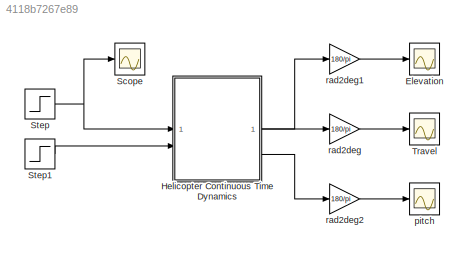
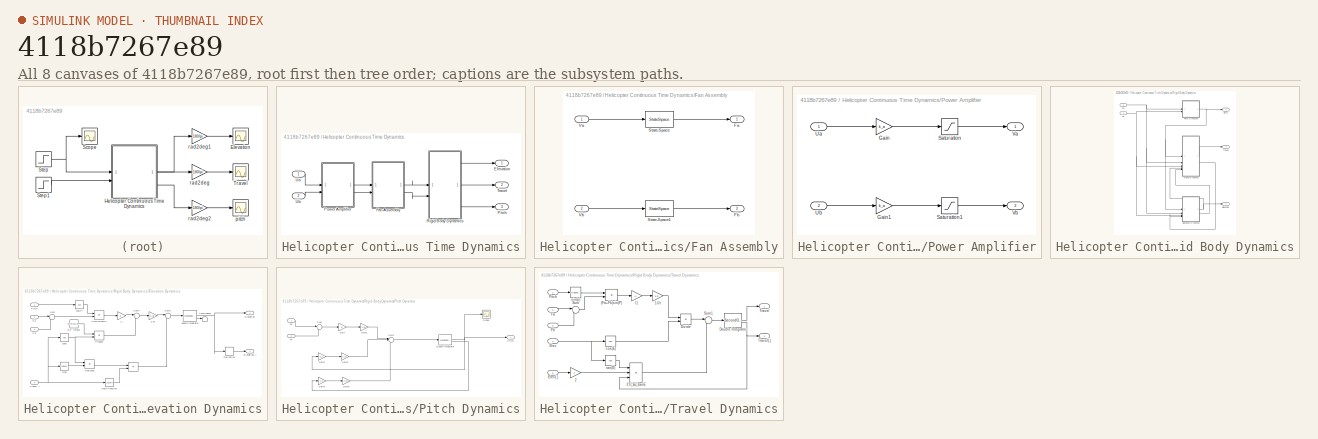
[diagram: thumbnail index - all 8 canvases of the model, root first then tree order]
MODEL slx_4118b7267e89
KIND model
CONFIG AbsTol = auto
CONFIG EnableMultiTasking = on
CONFIG FixedStep = auto
CONFIG MaxStep = auto
CONFIG MinStep = auto
CONFIG RelTol = 1e-3
CONFIG SampleTimeConstraint = Unconstrained
CONFIG SolverName = VariableStepAuto
CONFIG StartTime = 0.0
CONFIG StopTime = 60.0
BLOCK [Scope] Elevation
  Floating = off
  NumInputPorts = 1
  ScopeSpecificationString = Simulink.scopes.TimeScopeBlockCfg('CurrentConfiguration', extmgr.ConfigurationSet(extmgr.Configuration('Core','General UI',true),extmgr.Configuration('Core','Source UI',true),extmgr.Configuration('Sources','WiredSimulink',true,'DataLogging',true,'DataLoggingVariableName','elev','DataLoggingSaveFormat','StructureWithTime','DataLoggingDecimation','1','DataLoggingDecimateData',true),extmgr.Configurat...<+1772ch>
BLOCK [SubSystem] Helicopter Continuous Time Dynamics
BLOCK [Outport] Helicopter Continuous Time Dynamics/Elevation
  NameLocation = top
BLOCK [SubSystem] Helicopter Continuous Time Dynamics/Fan Assembly
BLOCK [Outport] Helicopter Continuous Time Dynamics/Fan Assembly/Fa
BLOCK [Outport] Helicopter Continuous Time Dynamics/Fan Assembly/Fb
  Port = 2
BLOCK [StateSpace] Helicopter Continuous Time Dynamics/Fan Assembly/State-Space
  A = sys_fan.A
  B = sys_fan.B
  C = sys_fan.C
  D = sys_fan.D
  InitialCondition = 0
BLOCK [StateSpace] Helicopter Continuous Time Dynamics/Fan Assembly/State-Space1
  A = sys_fan.A
  B = sys_fan.B
  C = sys_fan.C
  D = sys_fan.D
  InitialCondition = 0
BLOCK [Inport] Helicopter Continuous Time Dynamics/Fan Assembly/Va
BLOCK [Inport] Helicopter Continuous Time Dynamics/Fan Assembly/Vb
  Port = 2
BLOCK [Outport] Helicopter Continuous Time Dynamics/Pitch
  Port = 3
BLOCK [SubSystem] Helicopter Continuous Time Dynamics/Power Amplifier
BLOCK [Gain] Helicopter Continuous Time Dynamics/Power Amplifier/Gain
  Gain = k_a
BLOCK [Gain] Helicopter Continuous Time Dynamics/Power Amplifier/Gain1
  Gain = k_a
BLOCK [Saturate] Helicopter Continuous Time Dynamics/Power Amplifier/Saturation
  LowerLimit = amp_sat_l
  UpperLimit = amp_sat_u
BLOCK [Saturate] Helicopter Continuous Time Dynamics/Power Amplifier/Saturation1
  LowerLimit = amp_sat_l
  UpperLimit = amp_sat_u
BLOCK [Inport] Helicopter Continuous Time Dynamics/Power Amplifier/Ua
BLOCK [Inport] Helicopter Continuous Time Dynamics/Power Amplifier/Ub
  Port = 2
BLOCK [Outport] Helicopter Continuous Time Dynamics/Power Amplifier/Va
BLOCK [Outport] Helicopter Continuous Time Dynamics/Power Amplifier/Vb
  Port = 2
BLOCK [SubSystem] Helicopter Continuous Time Dynamics/Rigid Body Dynamics
BLOCK [Outport] Helicopter Continuous Time Dynamics/Rigid Body Dynamics/Elevation
  NameLocation = top
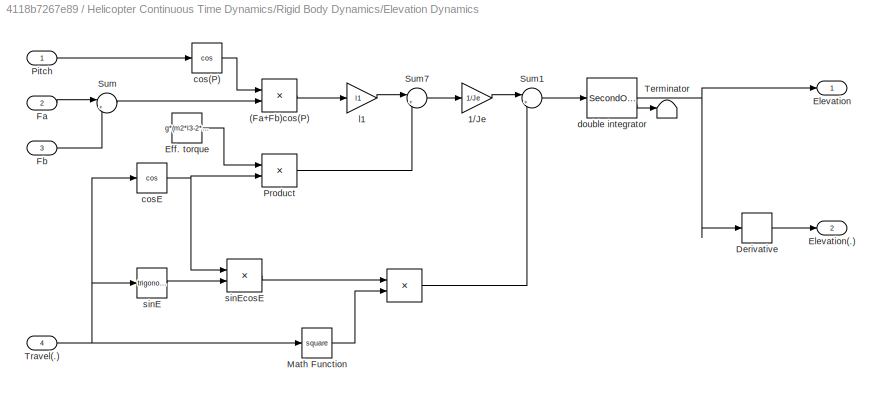
BLOCK [SubSystem] Helicopter Continuous Time Dynamics/Rigid Body Dynamics/Elevation Dynamics
BLOCK [Product] Helicopter Continuous Time Dynamics/Rigid Body Dynamics/Elevation Dynamics/ 
  InputSameDT = on
  OutDataTypeStr = Inherit: Same as first input
  RndMeth = Zero
  SaturateOnIntegerOverflow = on
BLOCK [Product] Helicopter Continuous Time Dynamics/Rigid Body Dynamics/Elevation Dynamics/(Fa+Fb)cos(P)
  InputSameDT = on
  OutDataTypeStr = Inherit: Same as first input
  RndMeth = Zero
  SaturateOnIntegerOverflow = on
BLOCK [Gain] Helicopter Continuous Time Dynamics/Rigid Body Dynamics/Elevation Dynamics/1//Je
  Gain = 1/Je
  OutDataTypeStr = Inherit: Same as input
  ParamDataTypeStr = Inherit: Same as input
  SaturateOnIntegerOverflow = on
BLOCK [Derivative] Helicopter Continuous Time Dynamics/Rigid Body Dynamics/Elevation Dynamics/Derivative
BLOCK [Constant] Helicopter Continuous Time Dynamics/Rigid Body Dynamics/Elevation Dynamics/Eff. torque
  Value = g*(m2*l3-2*m1*l1)
BLOCK [Outport] Helicopter Continuous Time Dynamics/Rigid Body Dynamics/Elevation Dynamics/Elevation
BLOCK [Outport] Helicopter Continuous Time Dynamics/Rigid Body Dynamics/Elevation Dynamics/Elevation(.)
  Port = 2
BLOCK [Inport] Helicopter Continuous Time Dynamics/Rigid Body Dynamics/Elevation Dynamics/Fa
  Port = 2
BLOCK [Inport] Helicopter Continuous Time Dynamics/Rigid Body Dynamics/Elevation Dynamics/Fb
  Port = 3
BLOCK [Math] Helicopter Continuous Time Dynamics/Rigid Body Dynamics/Elevation Dynamics/Math Function
  Operator = square
  SignedPower = on
BLOCK [Inport] Helicopter Continuous Time Dynamics/Rigid Body Dynamics/Elevation Dynamics/Pitch
BLOCK [Product] Helicopter Continuous Time Dynamics/Rigid Body Dynamics/Elevation Dynamics/Product
  InputSameDT = on
  OutDataTypeStr = Inherit: Same as first input
  RndMeth = Zero
  SaturateOnIntegerOverflow = on
BLOCK [Sum] Helicopter Continuous Time Dynamics/Rigid Body Dynamics/Elevation Dynamics/Sum
  InputSameDT = on
  Inputs = |++
  OutDataTypeStr = Inherit: Same as first input
  SaturateOnIntegerOverflow = on
BLOCK [Sum] Helicopter Continuous Time Dynamics/Rigid Body Dynamics/Elevation Dynamics/Sum1
  InputSameDT = on
  Inputs = |+-
  OutDataTypeStr = Inherit: Same as first input
  SaturateOnIntegerOverflow = on
BLOCK [Sum] Helicopter Continuous Time Dynamics/Rigid Body Dynamics/Elevation Dynamics/Sum7
  InputSameDT = on
  Inputs = |++
  OutDataTypeStr = Inherit: Same as first input
  SaturateOnIntegerOverflow = on
BLOCK [Terminator] Helicopter Continuous Time Dynamics/Rigid Body Dynamics/Elevation Dynamics/Terminator
BLOCK [Inport] Helicopter Continuous Time Dynamics/Rigid Body Dynamics/Elevation Dynamics/Travel(.)
  Port = 4
BLOCK [Trigonometry] Helicopter Continuous Time Dynamics/Rigid Body Dynamics/Elevation Dynamics/cos(P)
  Operator = cos
BLOCK [Trigonometry] Helicopter Continuous Time Dynamics/Rigid Body Dynamics/Elevation Dynamics/cosE
  Operator = cos
BLOCK [SecondOrderIntegrator] Helicopter Continuous Time Dynamics/Rigid Body Dynamics/Elevation Dynamics/double integrator
  ICX = e_lim_l
  LimitDXDT = on
  LimitX = on
  LowerLimitDXDT = -2*pi
  LowerLimitX = e_lim_l
  UpperLimitDXDT = 2*pi
  UpperLimitX = e_lim_u
BLOCK [Gain] Helicopter Continuous Time Dynamics/Rigid Body Dynamics/Elevation Dynamics/l1
  Gain = l1
  OutDataTypeStr = Inherit: Same as input
  ParamDataTypeStr = Inherit: Same as input
  SaturateOnIntegerOverflow = on
BLOCK [Trigonometry] Helicopter Continuous Time Dynamics/Rigid Body Dynamics/Elevation Dynamics/sinE
BLOCK [Product] Helicopter Continuous Time Dynamics/Rigid Body Dynamics/Elevation Dynamics/sinEcosE
  InputSameDT = on
  OutDataTypeStr = Inherit: Same as first input
  RndMeth = Zero
  SaturateOnIntegerOverflow = on
BLOCK [Inport] Helicopter Continuous Time Dynamics/Rigid Body Dynamics/Fa
BLOCK [Inport] Helicopter Continuous Time Dynamics/Rigid Body Dynamics/Fb
  Port = 2
BLOCK [Outport] Helicopter Continuous Time Dynamics/Rigid Body Dynamics/Pitch
  Port = 3
BLOCK [SubSystem] Helicopter Continuous Time Dynamics/Rigid Body Dynamics/Pitch Dynamics
BLOCK [SecondOrderIntegrator] Helicopter Continuous Time Dynamics/Rigid Body Dynamics/Pitch Dynamics/Double Integrator
  ICX = 0
  LimitX = on
  LowerLimitX = p_lim_l
  UpperLimitX = p_lim_u
BLOCK [Inport] Helicopter Continuous Time Dynamics/Rigid Body Dynamics/Pitch Dynamics/Fa
BLOCK [Inport] Helicopter Continuous Time Dynamics/Rigid Body Dynamics/Pitch Dynamics/Fb
  Port = 2
BLOCK [Gain] Helicopter Continuous Time Dynamics/Rigid Body Dynamics/Pitch Dynamics/Gain
  Gain = l2
BLOCK [Gain] Helicopter Continuous Time Dynamics/Rigid Body Dynamics/Pitch Dynamics/Gain1
  Gain = 1/Jp
BLOCK [Gain] Helicopter Continuous Time Dynamics/Rigid Body Dynamics/Pitch Dynamics/Gain2
  Gain = k_s
BLOCK [Gain] Helicopter Continuous Time Dynamics/Rigid Body Dynamics/Pitch Dynamics/Gain3
  Gain = 1/Jp
BLOCK [Gain] Helicopter Continuous Time Dynamics/Rigid Body Dynamics/Pitch Dynamics/Gain4
  Gain = k_d
BLOCK [Gain] Helicopter Continuous Time Dynamics/Rigid Body Dynamics/Pitch Dynamics/Gain5
  Gain = 1/Jp
BLOCK [Outport] Helicopter Continuous Time Dynamics/Rigid Body Dynamics/Pitch Dynamics/Pitch
BLOCK [Scope] Helicopter Continuous Time Dynamics/Rigid Body Dynamics/Pitch Dynamics/Scope
  Floating = off
  NumInputPorts = 1
  ScopeSpecificationString = Simulink.scopes.TimeScopeBlockCfg('CurrentConfiguration', extmgr.ConfigurationSet(extmgr.Configuration('Core','General UI',true),extmgr.Configuration('Core','Source UI',true),extmgr.Configuration('Sources','WiredSimulink',true,'DataLoggingVariableName','ScopeData2'),extmgr.Configuration('Visuals','Time Domain',true,'SerializedDisplays',{struct('MinYLimReal','-1.00000','MaxYLimReal','1.00000','YLab...<+1467ch>
BLOCK [Sum] Helicopter Continuous Time Dynamics/Rigid Body Dynamics/Pitch Dynamics/Sum
  Inputs = +-
BLOCK [Sum] Helicopter Continuous Time Dynamics/Rigid Body Dynamics/Pitch Dynamics/Sum1
  Inputs = |---
BLOCK [Outport] Helicopter Continuous Time Dynamics/Rigid Body Dynamics/Travel
  Port = 2
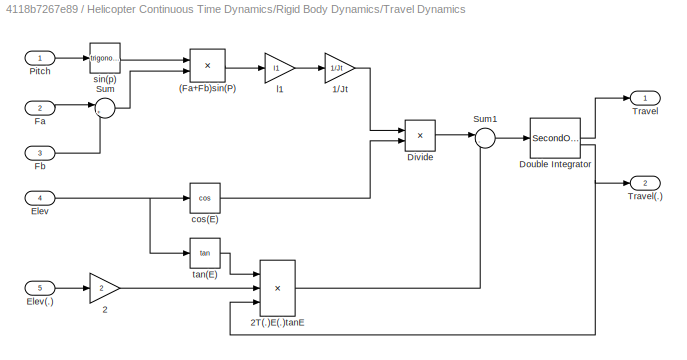
BLOCK [SubSystem] Helicopter Continuous Time Dynamics/Rigid Body Dynamics/Travel Dynamics
BLOCK [Product] Helicopter Continuous Time Dynamics/Rigid Body Dynamics/Travel Dynamics/(Fa+Fb)sin(P)
  InputSameDT = on
  OutDataTypeStr = Inherit: Same as first input
  RndMeth = Zero
  SaturateOnIntegerOverflow = on
BLOCK [Gain] Helicopter Continuous Time Dynamics/Rigid Body Dynamics/Travel Dynamics/1//Jt
  Gain = 1/Jt
  OutDataTypeStr = Inherit: Same as input
  ParamDataTypeStr = Inherit: Same as input
  SaturateOnIntegerOverflow = on
BLOCK [Gain] Helicopter Continuous Time Dynamics/Rigid Body Dynamics/Travel Dynamics/2
  Gain = 2
  OutDataTypeStr = Inherit: Same as input
  ParamDataTypeStr = Inherit: Same as input
  SaturateOnIntegerOverflow = on
BLOCK [Product] Helicopter Continuous Time Dynamics/Rigid Body Dynamics/Travel Dynamics/2T(.)E(.)tanE
  InputSameDT = on
  Inputs = 3
  OutDataTypeStr = Inherit: Same as first input
  RndMeth = Zero
  SaturateOnIntegerOverflow = on
BLOCK [Product] Helicopter Continuous Time Dynamics/Rigid Body Dynamics/Travel Dynamics/Divide
  Inputs = */
BLOCK [SecondOrderIntegrator] Helicopter Continuous Time Dynamics/Rigid Body Dynamics/Travel Dynamics/Double Integrator
  LimitDXDT = on
  LowerLimitDXDT = -2
  LowerLimitX = 0
  UpperLimitDXDT = 2
  UpperLimitX = 1
BLOCK [Inport] Helicopter Continuous Time Dynamics/Rigid Body Dynamics/Travel Dynamics/Elev
  Port = 4
BLOCK [Inport] Helicopter Continuous Time Dynamics/Rigid Body Dynamics/Travel Dynamics/Elev(.)
  Port = 5
BLOCK [Inport] Helicopter Continuous Time Dynamics/Rigid Body Dynamics/Travel Dynamics/Fa
  Port = 2
BLOCK [Inport] Helicopter Continuous Time Dynamics/Rigid Body Dynamics/Travel Dynamics/Fb
  Port = 3
BLOCK [Inport] Helicopter Continuous Time Dynamics/Rigid Body Dynamics/Travel Dynamics/Pitch
BLOCK [Sum] Helicopter Continuous Time Dynamics/Rigid Body Dynamics/Travel Dynamics/Sum
  InputSameDT = on
  Inputs = |++
  OutDataTypeStr = Inherit: Same as first input
  SaturateOnIntegerOverflow = on
BLOCK [Sum] Helicopter Continuous Time Dynamics/Rigid Body Dynamics/Travel Dynamics/Sum1
  InputSameDT = on
  Inputs = |-+
  OutDataTypeStr = Inherit: Same as first input
  SaturateOnIntegerOverflow = on
BLOCK [Outport] Helicopter Continuous Time Dynamics/Rigid Body Dynamics/Travel Dynamics/Travel
BLOCK [Outport] Helicopter Continuous Time Dynamics/Rigid Body Dynamics/Travel Dynamics/Travel(.)
  Port = 2
BLOCK [Trigonometry] Helicopter Continuous Time Dynamics/Rigid Body Dynamics/Travel Dynamics/cos(E)
  Operator = cos
BLOCK [Gain] Helicopter Continuous Time Dynamics/Rigid Body Dynamics/Travel Dynamics/l1
  Gain = l1
  OutDataTypeStr = Inherit: Same as input
  ParamDataTypeStr = Inherit: Same as input
  SaturateOnIntegerOverflow = on
BLOCK [Trigonometry] Helicopter Continuous Time Dynamics/Rigid Body Dynamics/Travel Dynamics/sin(p)
BLOCK [Trigonometry] Helicopter Continuous Time Dynamics/Rigid Body Dynamics/Travel Dynamics/tan(E)
  Operator = tan
BLOCK [Outport] Helicopter Continuous Time Dynamics/Travel
  Port = 2
BLOCK [Inport] Helicopter Continuous Time Dynamics/Ua
BLOCK [Inport] Helicopter Continuous Time Dynamics/Ub
  Port = 2
BLOCK [Scope] Scope
  Floating = off
  NumInputPorts = 1
  ScopeSpecificationString = Simulink.scopes.TimeScopeBlockCfg('CurrentConfiguration', extmgr.ConfigurationSet(extmgr.Configuration('Core','General UI',true),extmgr.Configuration('Core','Source UI',true),extmgr.Configuration('Sources','WiredSimulink',true,'DataLoggingVariableName','ScopeData1'),extmgr.Configuration('Visuals','Time Domain',true,'SerializedDisplays',{struct('MinYLimReal','3.00000','MaxYLimReal','5.00000','YLabe...<+1450ch>
BLOCK [Step] Step
  After = 4
  SampleTime = 0
  Time = 0
BLOCK [Step] Step1
  After = 4
  SampleTime = 0
  Time = 0
BLOCK [Scope] Travel
  Floating = off
  NumInputPorts = 1
  ScopeSpecificationString = Simulink.scopes.TimeScopeBlockCfg('CurrentConfiguration', extmgr.ConfigurationSet(extmgr.Configuration('Core','General UI',true),extmgr.Configuration('Core','Source UI',true),extmgr.Configuration('Sources','WiredSimulink',true,'DataLogging',true,'DataLoggingVariableName','trav','DataLoggingSaveFormat','StructureWithTime','DataLoggingDecimation','1','DataLoggingDecimateData',true),extmgr.Configurat...<+1776ch>
BLOCK [Scope] pitch
  Floating = off
  NumInputPorts = 1
  ScopeSpecificationString = Simulink.scopes.TimeScopeBlockCfg('CurrentConfiguration', extmgr.ConfigurationSet(extmgr.Configuration('Core','General UI',true),extmgr.Configuration('Core','Source UI',true),extmgr.Configuration('Sources','WiredSimulink',true,'DataLogging',true,'DataLoggingVariableName','pitch','DataLoggingSaveFormat','StructureWithTime','DataLoggingDecimation','1','DataLoggingDecimateData',true),extmgr.Configura...<+1774ch>
BLOCK [Gain] rad2deg
  Gain = 180/pi
  OutDataTypeStr = Inherit: Same as input
  ParamDataTypeStr = Inherit: Same as input
  SaturateOnIntegerOverflow = on
BLOCK [Gain] rad2deg1
  Gain = 180/pi
  OutDataTypeStr = Inherit: Same as input
  ParamDataTypeStr = Inherit: Same as input
  SaturateOnIntegerOverflow = on
BLOCK [Gain] rad2deg2
  Gain = 180/pi
  OutDataTypeStr = Inherit: Same as input
  ParamDataTypeStr = Inherit: Same as input
  SaturateOnIntegerOverflow = on
LINE Helicopter Continuous Time Dynamics/Fan Assembly/State-Space1:1 -> Helicopter Continuous Time Dynamics/Fan Assembly/Fb:1
LINE Helicopter Continuous Time Dynamics/Fan Assembly/State-Space:1 -> Helicopter Continuous Time Dynamics/Fan Assembly/Fa:1
LINE Helicopter Continuous Time Dynamics/Fan Assembly/Va:1 -> Helicopter Continuous Time Dynamics/Fan Assembly/State-Space:1
LINE Helicopter Continuous Time Dynamics/Fan Assembly/Vb:1 -> Helicopter Continuous Time Dynamics/Fan Assembly/State-Space1:1
LINE Helicopter Continuous Time Dynamics/Fan Assembly:1 -> Helicopter Continuous Time Dynamics/Rigid Body Dynamics:1
LINE Helicopter Continuous Time Dynamics/Fan Assembly:2 -> Helicopter Continuous Time Dynamics/Rigid Body Dynamics:2
LINE Helicopter Continuous Time Dynamics/Power Amplifier/Gain1:1 -> Helicopter Continuous Time Dynamics/Power Amplifier/Saturation1:1
LINE Helicopter Continuous Time Dynamics/Power Amplifier/Gain:1 -> Helicopter Continuous Time Dynamics/Power Amplifier/Saturation:1
LINE Helicopter Continuous Time Dynamics/Power Amplifier/Saturation1:1 -> Helicopter Continuous Time Dynamics/Power Amplifier/Vb:1
LINE Helicopter Continuous Time Dynamics/Power Amplifier/Saturation:1 -> Helicopter Continuous Time Dynamics/Power Amplifier/Va:1
LINE Helicopter Continuous Time Dynamics/Power Amplifier/Ua:1 -> Helicopter Continuous Time Dynamics/Power Amplifier/Gain:1
LINE Helicopter Continuous Time Dynamics/Power Amplifier/Ub:1 -> Helicopter Continuous Time Dynamics/Power Amplifier/Gain1:1
LINE Helicopter Continuous Time Dynamics/Power Amplifier:1 -> Helicopter Continuous Time Dynamics/Fan Assembly:1
LINE Helicopter Continuous Time Dynamics/Power Amplifier:2 -> Helicopter Continuous Time Dynamics/Fan Assembly:2
LINE Helicopter Continuous Time Dynamics/Rigid Body Dynamics/Elevation Dynamics/ :1 -> Helicopter Continuous Time Dynamics/Rigid Body Dynamics/Elevation Dynamics/Sum1:2
LINE Helicopter Continuous Time Dynamics/Rigid Body Dynamics/Elevation Dynamics/(Fa+Fb)cos(P):1 -> Helicopter Continuous Time Dynamics/Rigid Body Dynamics/Elevation Dynamics/l1:1
LINE Helicopter Continuous Time Dynamics/Rigid Body Dynamics/Elevation Dynamics/1//Je:1 -> Helicopter Continuous Time Dynamics/Rigid Body Dynamics/Elevation Dynamics/Sum1:1
LINE Helicopter Continuous Time Dynamics/Rigid Body Dynamics/Elevation Dynamics/Derivative:1 -> Helicopter Continuous Time Dynamics/Rigid Body Dynamics/Elevation Dynamics/Elevation(.):1
LINE Helicopter Continuous Time Dynamics/Rigid Body Dynamics/Elevation Dynamics/Eff. torque:1 -> Helicopter Continuous Time Dynamics/Rigid Body Dynamics/Elevation Dynamics/Product:1
LINE Helicopter Continuous Time Dynamics/Rigid Body Dynamics/Elevation Dynamics/Fa:1 -> Helicopter Continuous Time Dynamics/Rigid Body Dynamics/Elevation Dynamics/Sum:1
LINE Helicopter Continuous Time Dynamics/Rigid Body Dynamics/Elevation Dynamics/Fb:1 -> Helicopter Continuous Time Dynamics/Rigid Body Dynamics/Elevation Dynamics/Sum:2
LINE Helicopter Continuous Time Dynamics/Rigid Body Dynamics/Elevation Dynamics/Math Function:1 -> Helicopter Continuous Time Dynamics/Rigid Body Dynamics/Elevation Dynamics/ :2
LINE Helicopter Continuous Time Dynamics/Rigid Body Dynamics/Elevation Dynamics/Pitch:1 -> Helicopter Continuous Time Dynamics/Rigid Body Dynamics/Elevation Dynamics/cos(P):1
LINE Helicopter Continuous Time Dynamics/Rigid Body Dynamics/Elevation Dynamics/Product:1 -> Helicopter Continuous Time Dynamics/Rigid Body Dynamics/Elevation Dynamics/Sum7:2
LINE Helicopter Continuous Time Dynamics/Rigid Body Dynamics/Elevation Dynamics/Sum1:1 -> Helicopter Continuous Time Dynamics/Rigid Body Dynamics/Elevation Dynamics/double integrator:1
LINE Helicopter Continuous Time Dynamics/Rigid Body Dynamics/Elevation Dynamics/Sum7:1 -> Helicopter Continuous Time Dynamics/Rigid Body Dynamics/Elevation Dynamics/1//Je:1
LINE Helicopter Continuous Time Dynamics/Rigid Body Dynamics/Elevation Dynamics/Sum:1 -> Helicopter Continuous Time Dynamics/Rigid Body Dynamics/Elevation Dynamics/(Fa+Fb)cos(P):2
NET Helicopter Continuous Time Dynamics/Rigid Body Dynamics/Elevation Dynamics/Travel(.):1 -> Helicopter Continuous Time Dynamics/Rigid Body Dynamics/Elevation Dynamics/Math Function:1, Helicopter Continuous Time Dynamics/Rigid Body Dynamics/Elevation Dynamics/cosE:1, Helicopter Continuous Time Dynamics/Rigid Body Dynamics/Elevation Dynamics/sinE:1
LINE Helicopter Continuous Time Dynamics/Rigid Body Dynamics/Elevation Dynamics/cos(P):1 -> Helicopter Continuous Time Dynamics/Rigid Body Dynamics/Elevation Dynamics/(Fa+Fb)cos(P):1
NET Helicopter Continuous Time Dynamics/Rigid Body Dynamics/Elevation Dynamics/cosE:1 -> Helicopter Continuous Time Dynamics/Rigid Body Dynamics/Elevation Dynamics/Product:2, Helicopter Continuous Time Dynamics/Rigid Body Dynamics/Elevation Dynamics/sinEcosE:1
NET Helicopter Continuous Time Dynamics/Rigid Body Dynamics/Elevation Dynamics/double integrator:1 -> Helicopter Continuous Time Dynamics/Rigid Body Dynamics/Elevation Dynamics/Derivative:1, Helicopter Continuous Time Dynamics/Rigid Body Dynamics/Elevation Dynamics/Elevation:1
LINE Helicopter Continuous Time Dynamics/Rigid Body Dynamics/Elevation Dynamics/double integrator:2 -> Helicopter Continuous Time Dynamics/Rigid Body Dynamics/Elevation Dynamics/Terminator:1
LINE Helicopter Continuous Time Dynamics/Rigid Body Dynamics/Elevation Dynamics/l1:1 -> Helicopter Continuous Time Dynamics/Rigid Body Dynamics/Elevation Dynamics/Sum7:1
LINE Helicopter Continuous Time Dynamics/Rigid Body Dynamics/Elevation Dynamics/sinE:1 -> Helicopter Continuous Time Dynamics/Rigid Body Dynamics/Elevation Dynamics/sinEcosE:2
LINE Helicopter Continuous Time Dynamics/Rigid Body Dynamics/Elevation Dynamics/sinEcosE:1 -> Helicopter Continuous Time Dynamics/Rigid Body Dynamics/Elevation Dynamics/ :1
NET Helicopter Continuous Time Dynamics/Rigid Body Dynamics/Elevation Dynamics:1 -> Helicopter Continuous Time Dynamics/Rigid Body Dynamics/Elevation:1, Helicopter Continuous Time Dynamics/Rigid Body Dynamics/Travel Dynamics:4
LINE Helicopter Continuous Time Dynamics/Rigid Body Dynamics/Elevation Dynamics:2 -> Helicopter Continuous Time Dynamics/Rigid Body Dynamics/Travel Dynamics:5
NET Helicopter Continuous Time Dynamics/Rigid Body Dynamics/Fa:1 -> Helicopter Continuous Time Dynamics/Rigid Body Dynamics/Elevation Dynamics:2, Helicopter Continuous Time Dynamics/Rigid Body Dynamics/Pitch Dynamics:1, Helicopter Continuous Time Dynamics/Rigid Body Dynamics/Travel Dynamics:2
NET Helicopter Continuous Time Dynamics/Rigid Body Dynamics/Fb:1 -> Helicopter Continuous Time Dynamics/Rigid Body Dynamics/Elevation Dynamics:3, Helicopter Continuous Time Dynamics/Rigid Body Dynamics/Pitch Dynamics:2, Helicopter Continuous Time Dynamics/Rigid Body Dynamics/Travel Dynamics:3
NET Helicopter Continuous Time Dynamics/Rigid Body Dynamics/Pitch Dynamics/Double Integrator:1 -> Helicopter Continuous Time Dynamics/Rigid Body Dynamics/Pitch Dynamics/Gain2:1, Helicopter Continuous Time Dynamics/Rigid Body Dynamics/Pitch Dynamics/Pitch:1, Helicopter Continuous Time Dynamics/Rigid Body Dynamics/Pitch Dynamics/Scope:1
LINE Helicopter Continuous Time Dynamics/Rigid Body Dynamics/Pitch Dynamics/Double Integrator:2 -> Helicopter Continuous Time Dynamics/Rigid Body Dynamics/Pitch Dynamics/Gain4:1
LINE Helicopter Continuous Time Dynamics/Rigid Body Dynamics/Pitch Dynamics/Fa:1 -> Helicopter Continuous Time Dynamics/Rigid Body Dynamics/Pitch Dynamics/Sum:1
LINE Helicopter Continuous Time Dynamics/Rigid Body Dynamics/Pitch Dynamics/Fb:1 -> Helicopter Continuous Time Dynamics/Rigid Body Dynamics/Pitch Dynamics/Sum:2
LINE Helicopter Continuous Time Dynamics/Rigid Body Dynamics/Pitch Dynamics/Gain1:1 -> Helicopter Continuous Time Dynamics/Rigid Body Dynamics/Pitch Dynamics/Sum1:1
LINE Helicopter Continuous Time Dynamics/Rigid Body Dynamics/Pitch Dynamics/Gain2:1 -> Helicopter Continuous Time Dynamics/Rigid Body Dynamics/Pitch Dynamics/Gain3:1
LINE Helicopter Continuous Time Dynamics/Rigid Body Dynamics/Pitch Dynamics/Gain3:1 -> Helicopter Continuous Time Dynamics/Rigid Body Dynamics/Pitch Dynamics/Sum1:2
LINE Helicopter Continuous Time Dynamics/Rigid Body Dynamics/Pitch Dynamics/Gain4:1 -> Helicopter Continuous Time Dynamics/Rigid Body Dynamics/Pitch Dynamics/Gain5:1
LINE Helicopter Continuous Time Dynamics/Rigid Body Dynamics/Pitch Dynamics/Gain5:1 -> Helicopter Continuous Time Dynamics/Rigid Body Dynamics/Pitch Dynamics/Sum1:3
LINE Helicopter Continuous Time Dynamics/Rigid Body Dynamics/Pitch Dynamics/Gain:1 -> Helicopter Continuous Time Dynamics/Rigid Body Dynamics/Pitch Dynamics/Gain1:1
LINE Helicopter Continuous Time Dynamics/Rigid Body Dynamics/Pitch Dynamics/Sum1:1 -> Helicopter Continuous Time Dynamics/Rigid Body Dynamics/Pitch Dynamics/Double Integrator:1
LINE Helicopter Continuous Time Dynamics/Rigid Body Dynamics/Pitch Dynamics/Sum:1 -> Helicopter Continuous Time Dynamics/Rigid Body Dynamics/Pitch Dynamics/Gain:1
NET Helicopter Continuous Time Dynamics/Rigid Body Dynamics/Pitch Dynamics:1 -> Helicopter Continuous Time Dynamics/Rigid Body Dynamics/Elevation Dynamics:1, Helicopter Continuous Time Dynamics/Rigid Body Dynamics/Pitch:1, Helicopter Continuous Time Dynamics/Rigid Body Dynamics/Travel Dynamics:1
LINE Helicopter Continuous Time Dynamics/Rigid Body Dynamics/Travel Dynamics/(Fa+Fb)sin(P):1 -> Helicopter Continuous Time Dynamics/Rigid Body Dynamics/Travel Dynamics/l1:1
LINE Helicopter Continuous Time Dynamics/Rigid Body Dynamics/Travel Dynamics/1//Jt:1 -> Helicopter Continuous Time Dynamics/Rigid Body Dynamics/Travel Dynamics/Divide:1
LINE Helicopter Continuous Time Dynamics/Rigid Body Dynamics/Travel Dynamics/2:1 -> Helicopter Continuous Time Dynamics/Rigid Body Dynamics/Travel Dynamics/2T(.)E(.)tanE:2
LINE Helicopter Continuous Time Dynamics/Rigid Body Dynamics/Travel Dynamics/2T(.)E(.)tanE:1 -> Helicopter Continuous Time Dynamics/Rigid Body Dynamics/Travel Dynamics/Sum1:2
LINE Helicopter Continuous Time Dynamics/Rigid Body Dynamics/Travel Dynamics/Divide:1 -> Helicopter Continuous Time Dynamics/Rigid Body Dynamics/Travel Dynamics/Sum1:1
LINE Helicopter Continuous Time Dynamics/Rigid Body Dynamics/Travel Dynamics/Double Integrator:1 -> Helicopter Continuous Time Dynamics/Rigid Body Dynamics/Travel Dynamics/Travel:1
NET Helicopter Continuous Time Dynamics/Rigid Body Dynamics/Travel Dynamics/Double Integrator:2 -> Helicopter Continuous Time Dynamics/Rigid Body Dynamics/Travel Dynamics/2T(.)E(.)tanE:3, Helicopter Continuous Time Dynamics/Rigid Body Dynamics/Travel Dynamics/Travel(.):1
LINE Helicopter Continuous Time Dynamics/Rigid Body Dynamics/Travel Dynamics/Elev(.):1 -> Helicopter Continuous Time Dynamics/Rigid Body Dynamics/Travel Dynamics/2:1
NET Helicopter Continuous Time Dynamics/Rigid Body Dynamics/Travel Dynamics/Elev:1 -> Helicopter Continuous Time Dynamics/Rigid Body Dynamics/Travel Dynamics/cos(E):1, Helicopter Continuous Time Dynamics/Rigid Body Dynamics/Travel Dynamics/tan(E):1
LINE Helicopter Continuous Time Dynamics/Rigid Body Dynamics/Travel Dynamics/Fa:1 -> Helicopter Continuous Time Dynamics/Rigid Body Dynamics/Travel Dynamics/Sum:1
LINE Helicopter Continuous Time Dynamics/Rigid Body Dynamics/Travel Dynamics/Fb:1 -> Helicopter Continuous Time Dynamics/Rigid Body Dynamics/Travel Dynamics/Sum:2
LINE Helicopter Continuous Time Dynamics/Rigid Body Dynamics/Travel Dynamics/Pitch:1 -> Helicopter Continuous Time Dynamics/Rigid Body Dynamics/Travel Dynamics/sin(p):1
LINE Helicopter Continuous Time Dynamics/Rigid Body Dynamics/Travel Dynamics/Sum1:1 -> Helicopter Continuous Time Dynamics/Rigid Body Dynamics/Travel Dynamics/Double Integrator:1
LINE Helicopter Continuous Time Dynamics/Rigid Body Dynamics/Travel Dynamics/Sum:1 -> Helicopter Continuous Time Dynamics/Rigid Body Dynamics/Travel Dynamics/(Fa+Fb)sin(P):2
LINE Helicopter Continuous Time Dynamics/Rigid Body Dynamics/Travel Dynamics/cos(E):1 -> Helicopter Continuous Time Dynamics/Rigid Body Dynamics/Travel Dynamics/Divide:2
LINE Helicopter Continuous Time Dynamics/Rigid Body Dynamics/Travel Dynamics/l1:1 -> Helicopter Continuous Time Dynamics/Rigid Body Dynamics/Travel Dynamics/1//Jt:1
LINE Helicopter Continuous Time Dynamics/Rigid Body Dynamics/Travel Dynamics/sin(p):1 -> Helicopter Continuous Time Dynamics/Rigid Body Dynamics/Travel Dynamics/(Fa+Fb)sin(P):1
LINE Helicopter Continuous Time Dynamics/Rigid Body Dynamics/Travel Dynamics/tan(E):1 -> Helicopter Continuous Time Dynamics/Rigid Body Dynamics/Travel Dynamics/2T(.)E(.)tanE:1
LINE Helicopter Continuous Time Dynamics/Rigid Body Dynamics/Travel Dynamics:1 -> Helicopter Continuous Time Dynamics/Rigid Body Dynamics/Travel:1
LINE Helicopter Continuous Time Dynamics/Rigid Body Dynamics/Travel Dynamics:2 -> Helicopter Continuous Time Dynamics/Rigid Body Dynamics/Elevation Dynamics:4
LINE Helicopter Continuous Time Dynamics/Rigid Body Dynamics:1 -> Helicopter Continuous Time Dynamics/Elevation:1
LINE Helicopter Continuous Time Dynamics/Rigid Body Dynamics:2 -> Helicopter Continuous Time Dynamics/Travel:1
LINE Helicopter Continuous Time Dynamics/Rigid Body Dynamics:3 -> Helicopter Continuous Time Dynamics/Pitch:1
LINE Helicopter Continuous Time Dynamics/Ua:1 -> Helicopter Continuous Time Dynamics/Power Amplifier:1
LINE Helicopter Continuous Time Dynamics/Ub:1 -> Helicopter Continuous Time Dynamics/Power Amplifier:2
LINE Helicopter Continuous Time Dynamics:1 -> rad2deg1:1
LINE Helicopter Continuous Time Dynamics:2 -> rad2deg:1
LINE Helicopter Continuous Time Dynamics:3 -> rad2deg2:1
LINE Step1:1 -> Helicopter Continuous Time Dynamics:2
NET Step:1 -> Helicopter Continuous Time Dynamics:1, Scope:1
LINE rad2deg1:1 -> Elevation:1
LINE rad2deg2:1 -> pitch:1
LINE rad2deg:1 -> Travel:1
note: NET lines group one-source signal fan-out (src -> all destinations, sorted); 1:1 wires keep LINE
